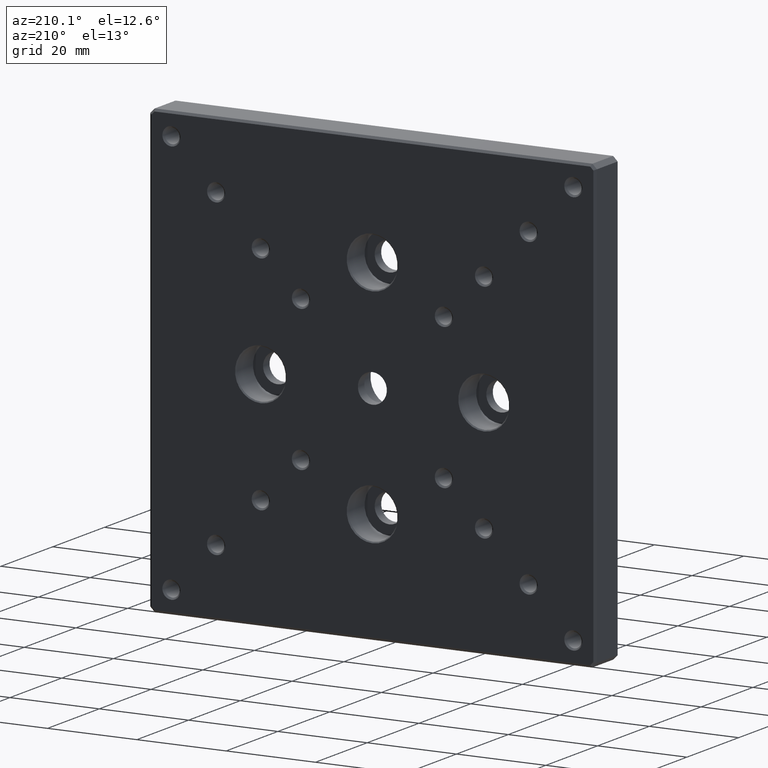
[diagram: clean part render]
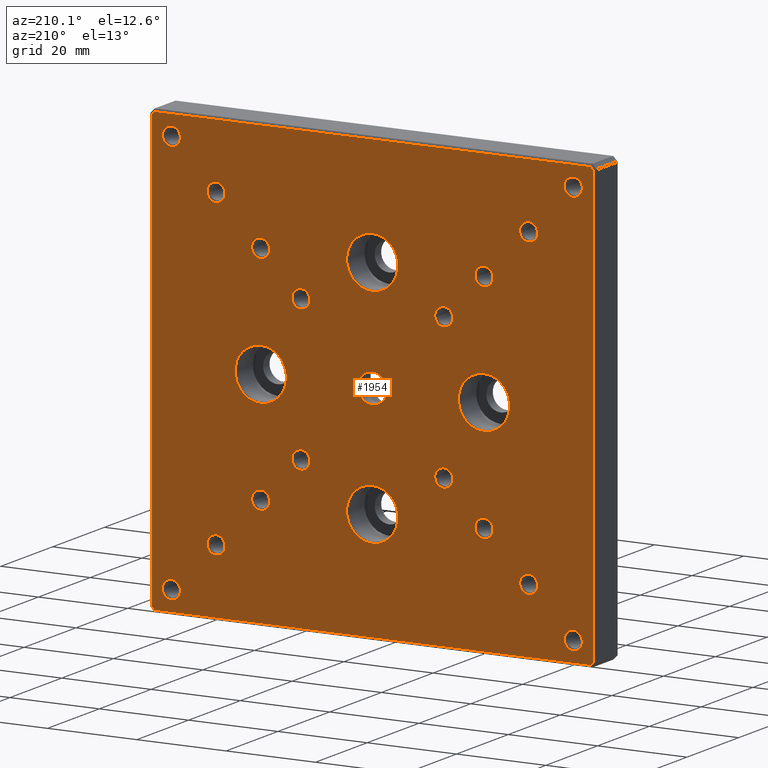
[diagram: same view with one face highlighted and labeled with its STEP entity id]
A machine part, auxiliary view. The second image highlights one B-rep face of the part: STEP entity #1954.
In plain terms, the highlighted planar face has unit normal (0, 1, 0).
Its self-contained STEP definition (entity closure, byte-faithful):
#1 = VERTEX_POINT ( 'NONE', #473 ) ;
#4 = AXIS2_PLACEMENT_3D ( 'NONE', #232, #1006, #1331 ) ;
#5 = ORIENTED_EDGE ( 'NONE', *, *, #1235, .T. ) ;
#16 = DIRECTION ( 'NONE',  ( 0.000000000000000000, 0.000000000000000000, 1.000000000000000000 ) ) ;
#25 = DIRECTION ( 'NONE',  ( 0.000000000000000000, 0.000000000000000000, 1.000000000000000000 ) ) ;
#26 = EDGE_LOOP ( 'NONE', ( #857 ) ) ;
#27 = DIRECTION ( 'NONE',  ( -0.000000000000000000, -1.000000000000000000, -0.000000000000000000 ) ) ;
#29 = EDGE_LOOP ( 'NONE', ( #1697 ) ) ;
#30 = AXIS2_PLACEMENT_3D ( 'NONE', #1728, #445, #1311 ) ;
#32 = CARTESIAN_POINT ( 'NONE',  ( -35.00000000000001421, 9.000000000000001776, -32.97500000000000853 ) ) ;
#35 = CIRCLE ( 'NONE', #919, 2.024999999999999023 ) ;
#38 = DIRECTION ( 'NONE',  ( -0.000000000000000000, 1.000000000000000000, -0.000000000000000000 ) ) ;
#39 = ORIENTED_EDGE ( 'NONE', *, *, #1466, .T. ) ;
#40 = VECTOR ( 'NONE', #1415, 1000.000000000000000 ) ;
#46 = EDGE_LOOP ( 'NONE', ( #1763 ) ) ;
#55 = CIRCLE ( 'NONE', #1634, 2.024999999999999023 ) ;
#69 = ORIENTED_EDGE ( 'NONE', *, *, #2072, .F. ) ;
#74 = DIRECTION ( 'NONE',  ( -1.387778780781445676E-16, 0.000000000000000000, -1.000000000000000000 ) ) ;
#84 = VERTEX_POINT ( 'NONE', #1437 ) ;
#88 = DIRECTION ( 'NONE',  ( 0.000000000000000000, -0.000000000000000000, 1.000000000000000000 ) ) ;
#95 = EDGE_CURVE ( 'NONE', #820, #820, #259, .T. ) ;
#96 = VERTEX_POINT ( 'NONE', #1233 ) ;
#98 = LINE ( 'NONE', #130, #40 ) ;
#104 = EDGE_LOOP ( 'NONE', ( #1701 ) ) ;
#105 = CIRCLE ( 'NONE', #1992, 5.750000000000032863 ) ;
#108 = FACE_BOUND ( 'NONE', #1667, .T. ) ;
#109 = ORIENTED_EDGE ( 'NONE', *, *, #1460, .F. ) ;
#118 = FACE_BOUND ( 'NONE', #1451, .T. ) ;
#130 = CARTESIAN_POINT ( 'NONE',  ( -49.14644660940640364, 9.000000000000000000, -49.14644660940707865 ) ) ;
#143 = AXIS2_PLACEMENT_3D ( 'NONE', #1735, #665, #623 ) ;
#167 = AXIS2_PLACEMENT_3D ( 'NONE', #1424, #903, #296 ) ;
#185 = VERTEX_POINT ( 'NONE', #1306 ) ;
#195 = DIRECTION ( 'NONE',  ( -1.000000000000000000, 0.000000000000000000, 0.000000000000000000 ) ) ;
#210 = CARTESIAN_POINT ( 'NONE',  ( 49.49999999999999289, 9.000000000000000000, -49.00000000000002132 ) ) ;
#223 = VERTEX_POINT ( 'NONE', #1801 ) ;
#228 = LINE ( 'NONE', #870, #927 ) ;
#230 = ORIENTED_EDGE ( 'NONE', *, *, #1110, .T. ) ;
#232 = CARTESIAN_POINT ( 'NONE',  ( 24.99999999999999289, 9.000000000000001776, -25.00000000000000000 ) ) ;
#242 = CARTESIAN_POINT ( 'NONE',  ( 15.99999999999999645, 9.000000000000001776, -13.97500000000000497 ) ) ;
#254 = FACE_BOUND ( 'NONE', #2015, .T. ) ;
#255 = VECTOR ( 'NONE', #1647, 1000.000000000000000 ) ;
#256 = ORIENTED_EDGE ( 'NONE', *, *, #1112, .T. ) ;
#258 = CARTESIAN_POINT ( 'NONE',  ( -45.00000000000001421, 9.000000000000001776, 45.00000000000000000 ) ) ;
#259 = CIRCLE ( 'NONE', #1800, 2.024999999999999023 ) ;
#262 = VERTEX_POINT ( 'NONE', #439 ) ;
#263 = LINE ( 'NONE', #1070, #1546 ) ;
#267 = ORIENTED_EDGE ( 'NONE', *, *, #486, .F. ) ;
#274 = VERTEX_POINT ( 'NONE', #570 ) ;
#284 = CIRCLE ( 'NONE', #1966, 2.024999999999999023 ) ;
#290 = CARTESIAN_POINT ( 'NONE',  ( 49.14644660940604126, 9.000000000000000000, 49.14644660940741261 ) ) ;
#296 = DIRECTION ( 'NONE',  ( 0.000000000000000000, 0.000000000000000000, 1.000000000000000000 ) ) ;
#302 = CIRCLE ( 'NONE', #1478, 5.750000000000074607 ) ;
#312 = CIRCLE ( 'NONE', #342, 3.250000000000011546 ) ;
#313 = EDGE_CURVE ( 'NONE', #1444, #1444, #1939, .T. ) ;
#314 = EDGE_LOOP ( 'NONE', ( #1747 ) ) ;
#315 = CARTESIAN_POINT ( 'NONE',  ( 25.00000000000000000, 9.000000000000001776, 24.99999999999999645 ) ) ;
#319 = DIRECTION ( 'NONE',  ( -0.000000000000000000, -1.000000000000000000, -0.000000000000000000 ) ) ;
#321 = CARTESIAN_POINT ( 'NONE',  ( 0.000000000000000000, 9.000000000000000000, 24.99999999999999645 ) ) ;
#339 = VECTOR ( 'NONE', #793, 1000.000000000000000 ) ;
#342 = AXIS2_PLACEMENT_3D ( 'NONE', #483, #319, #1454 ) ;
#357 = VERTEX_POINT ( 'NONE', #896 ) ;
#364 = EDGE_CURVE ( 'NONE', #2078, #2078, #1502, .T. ) ;
#402 = CARTESIAN_POINT ( 'NONE',  ( -48.79289321881344677, 9.000000000000000000, 49.50000000000000711 ) ) ;
#412 = DIRECTION ( 'NONE',  ( -0.000000000000000000, 1.000000000000000000, -0.000000000000000000 ) ) ;
#421 = AXIS2_PLACEMENT_3D ( 'NONE', #1590, #1282, #25 ) ;
#439 = CARTESIAN_POINT ( 'NONE',  ( 16.00000000000000000, 9.000000000000001776, 18.02499999999999503 ) ) ;
#445 = DIRECTION ( 'NONE',  ( -0.000000000000000000, 1.000000000000000000, -0.000000000000000000 ) ) ;
#469 = DIRECTION ( 'NONE',  ( 0.000000000000000000, 0.000000000000000000, 1.000000000000000000 ) ) ;
#473 = CARTESIAN_POINT ( 'NONE',  ( -45.00000000000002132, 9.000000000000001776, -42.97500000000000142 ) ) ;
#477 = EDGE_LOOP ( 'NONE', ( #764 ) ) ;
#483 = CARTESIAN_POINT ( 'NONE',  ( 0.000000000000000000, 8.999999999999994671, 0.000000000000000000 ) ) ;
#486 = EDGE_CURVE ( 'NONE', #1, #1, #933, .T. ) ;
#491 = CARTESIAN_POINT ( 'NONE',  ( 49.14644660940638232, 9.000000000000000000, -49.14644660940706444 ) ) ;
#514 = LINE ( 'NONE', #491, #339 ) ;
#526 = VERTEX_POINT ( 'NONE', #402 ) ;
#532 = DIRECTION ( 'NONE',  ( -0.000000000000000000, 1.000000000000000000, -0.000000000000000000 ) ) ;
#537 = VERTEX_POINT ( 'NONE', #559 ) ;
#543 = LINE ( 'NONE', #846, #255 ) ;
#551 = DIRECTION ( 'NONE',  ( -0.000000000000000000, 1.000000000000000000, -0.000000000000000000 ) ) ;
#559 = CARTESIAN_POINT ( 'NONE',  ( 49.50000000000000711, 9.000000000000000000, 48.79289321881345387 ) ) ;
#570 = CARTESIAN_POINT ( 'NONE',  ( -25.00000000000000000, 9.000000000000001776, 27.02499999999999858 ) ) ;
#574 = ORIENTED_EDGE ( 'NONE', *, *, #1416, .T. ) ;
#575 = CARTESIAN_POINT ( 'NONE',  ( 35.00000000000000711, 9.000000000000001776, 34.99999999999999289 ) ) ;
#577 = DIRECTION ( 'NONE',  ( -0.000000000000000000, -1.000000000000000000, -0.000000000000000000 ) ) ;
#595 = PLANE ( 'NONE',  #1153 ) ;
#596 = CIRCLE ( 'NONE', #421, 2.024999999999999023 ) ;
#599 = DIRECTION ( 'NONE',  ( -0.000000000000000000, 1.000000000000000000, -0.000000000000000000 ) ) ;
#616 = FACE_BOUND ( 'NONE', #1512, .T. ) ;
#623 = DIRECTION ( 'NONE',  ( 0.000000000000000000, 0.000000000000000000, 1.000000000000000000 ) ) ;
#631 = CARTESIAN_POINT ( 'NONE',  ( 24.99999999999999645, 9.000000000000000000, 5.750000000000032863 ) ) ;
#650 = CIRCLE ( 'NONE', #1864, 2.024999999999999023 ) ;
#659 = ORIENTED_EDGE ( 'NONE', *, *, #677, .T. ) ;
#665 = DIRECTION ( 'NONE',  ( -0.000000000000000000, 1.000000000000000000, -0.000000000000000000 ) ) ;
#668 = EDGE_CURVE ( 'NONE', #1519, #1519, #770, .T. ) ;
#677 = EDGE_CURVE ( 'NONE', #84, #526, #263, .T. ) ;
#688 = CARTESIAN_POINT ( 'NONE',  ( 45.00000000000000000, 9.000000000000001776, 45.00000000000000000 ) ) ;
#699 = DIRECTION ( 'NONE',  ( -0.000000000000000000, 1.000000000000000000, -0.000000000000000000 ) ) ;
#701 = ORIENTED_EDGE ( 'NONE', *, *, #1029, .T. ) ;
#710 = DIRECTION ( 'NONE',  ( 0.000000000000000000, 0.000000000000000000, 1.000000000000000000 ) ) ;
#728 = AXIS2_PLACEMENT_3D ( 'NONE', #2001, #699, #710 ) ;
#729 = CARTESIAN_POINT ( 'NONE',  ( 34.99999999999999289, 9.000000000000001776, -32.97500000000001563 ) ) ;
#735 = DIRECTION ( 'NONE',  ( 0.000000000000000000, 0.000000000000000000, 1.000000000000000000 ) ) ;
#742 = DIRECTION ( 'NONE',  ( -0.000000000000000000, 1.000000000000000000, -0.000000000000000000 ) ) ;
#749 = FACE_BOUND ( 'NONE', #1285, .T. ) ;
#762 = CARTESIAN_POINT ( 'NONE',  ( -35.00000000000000711, 9.000000000000001776, 34.99999999999999289 ) ) ;
#764 = ORIENTED_EDGE ( 'NONE', *, *, #1681, .T. ) ;
#770 = CIRCLE ( 'NONE', #1644, 2.024999999999999023 ) ;
#791 = EDGE_CURVE ( 'NONE', #877, #877, #1077, .T. ) ;
#792 = ORIENTED_EDGE ( 'NONE', *, *, #1774, .F. ) ;
#793 = DIRECTION ( 'NONE',  ( -0.7071067811865524577, 0.000000000000000000, -0.7071067811865426878 ) ) ;
#806 = DIRECTION ( 'NONE',  ( -0.000000000000000000, 1.000000000000000000, -0.000000000000000000 ) ) ;
#820 = VERTEX_POINT ( 'NONE', #1467 ) ;
#825 = EDGE_LOOP ( 'NONE', ( #109 ) ) ;
#830 = DIRECTION ( 'NONE',  ( -0.000000000000000000, -1.000000000000000000, -0.000000000000000000 ) ) ;
#838 = EDGE_CURVE ( 'NONE', #1007, #1007, #302, .T. ) ;
#844 = VERTEX_POINT ( 'NONE', #32 ) ;
#846 = CARTESIAN_POINT ( 'NONE',  ( 48.99999999999997868, 9.000000000000000000, 49.50000000000000711 ) ) ;
#857 = ORIENTED_EDGE ( 'NONE', *, *, #838, .T. ) ;
#866 = CARTESIAN_POINT ( 'NONE',  ( 24.99999999999999289, 9.000000000000001776, -22.97500000000000142 ) ) ;
#870 = CARTESIAN_POINT ( 'NONE',  ( -49.49999999999999289, 9.000000000000000000, 49.00000000000002132 ) ) ;
#877 = VERTEX_POINT ( 'NONE', #1499 ) ;
#891 = FACE_BOUND ( 'NONE', #1485, .T. ) ;
#896 = CARTESIAN_POINT ( 'NONE',  ( 48.79289321881343966, 9.000000000000000000, 49.50000000000000711 ) ) ;
#902 = VERTEX_POINT ( 'NONE', #2048 ) ;
#903 = DIRECTION ( 'NONE',  ( -0.000000000000000000, 1.000000000000000000, -0.000000000000000000 ) ) ;
#916 = DIRECTION ( 'NONE',  ( 0.000000000000000000, 1.000000000000000000, 0.000000000000000000 ) ) ;
#919 = AXIS2_PLACEMENT_3D ( 'NONE', #315, #806, #984 ) ;
#923 = CARTESIAN_POINT ( 'NONE',  ( 0.000000000000000000, 9.000000000000000000, 0.000000000000000000 ) ) ;
#927 = VECTOR ( 'NONE', #1707, 1000.000000000000000 ) ;
#933 = CIRCLE ( 'NONE', #30, 2.024999999999999023 ) ;
#934 = CARTESIAN_POINT ( 'NONE',  ( -48.79289321881346808, 9.000000000000000000, -49.49999999999999289 ) ) ;
#944 = DIRECTION ( 'NONE',  ( 0.7071067811865524577, 0.000000000000000000, 0.7071067811865426878 ) ) ;
#970 = CIRCLE ( 'NONE', #1102, 5.749999999999994671 ) ;
#971 = DIRECTION ( 'NONE',  ( -0.000000000000000000, -1.000000000000000000, -0.000000000000000000 ) ) ;
#975 = VERTEX_POINT ( 'NONE', #1507 ) ;
#984 = DIRECTION ( 'NONE',  ( 0.000000000000000000, 0.000000000000000000, 1.000000000000000000 ) ) ;
#993 = CARTESIAN_POINT ( 'NONE',  ( -49.00000000000002132, 9.000000000000000000, -49.49999999999999289 ) ) ;
#997 = VERTEX_POINT ( 'NONE', #866 ) ;
#1006 = DIRECTION ( 'NONE',  ( -0.000000000000000000, 1.000000000000000000, -0.000000000000000000 ) ) ;
#1007 = VERTEX_POINT ( 'NONE', #1790 ) ;
#1029 = EDGE_CURVE ( 'NONE', #537, #185, #1653, .T. ) ;
#1034 = ORIENTED_EDGE ( 'NONE', *, *, #1390, .F. ) ;
#1035 = CARTESIAN_POINT ( 'NONE',  ( 48.79289321881344677, 9.000000000000000000, -49.49999999999999289 ) ) ;
#1036 = DIRECTION ( 'NONE',  ( 0.000000000000000000, 0.000000000000000000, 1.000000000000000000 ) ) ;
#1039 = EDGE_CURVE ( 'NONE', #997, #997, #1715, .T. ) ;
#1055 = CARTESIAN_POINT ( 'NONE',  ( 24.99999999999999645, 9.000000000000000000, 0.000000000000000000 ) ) ;
#1056 = CIRCLE ( 'NONE', #143, 2.024999999999999023 ) ;
#1070 = CARTESIAN_POINT ( 'NONE',  ( -49.14644660940638232, 9.000000000000000000, 49.14644660940706444 ) ) ;
#1071 = FACE_BOUND ( 'NONE', #1783, .T. ) ;
#1077 = CIRCLE ( 'NONE', #167, 2.024999999999999023 ) ;
#1078 = EDGE_LOOP ( 'NONE', ( #69 ) ) ;
#1102 = AXIS2_PLACEMENT_3D ( 'NONE', #321, #971, #1598 ) ;
#1110 = EDGE_CURVE ( 'NONE', #1287, #1970, #1472, .T. ) ;
#1112 = EDGE_CURVE ( 'NONE', #1963, #1963, #105, .T. ) ;
#1118 = ORIENTED_EDGE ( 'NONE', *, *, #791, .F. ) ;
#1120 = EDGE_CURVE ( 'NONE', #223, #223, #35, .T. ) ;
#1127 = EDGE_CURVE ( 'NONE', #844, #844, #1252, .T. ) ;
#1134 = AXIS2_PLACEMENT_3D ( 'NONE', #258, #1369, #735 ) ;
#1153 = AXIS2_PLACEMENT_3D ( 'NONE', #923, #916, #88 ) ;
#1165 = CIRCLE ( 'NONE', #728, 2.024999999999999023 ) ;
#1176 = DIRECTION ( 'NONE',  ( 0.000000000000000000, 0.000000000000000000, 1.000000000000000000 ) ) ;
#1216 = FACE_BOUND ( 'NONE', #46, .T. ) ;
#1224 = FACE_BOUND ( 'NONE', #1775, .T. ) ;
#1231 = EDGE_LOOP ( 'NONE', ( #1118 ) ) ;
#1233 = CARTESIAN_POINT ( 'NONE',  ( -35.00000000000000711, 9.000000000000001776, 37.02499999999999858 ) ) ;
#1235 = EDGE_CURVE ( 'NONE', #185, #1287, #514, .T. ) ;
#1236 = FACE_BOUND ( 'NONE', #1957, .T. ) ;
#1244 = ORIENTED_EDGE ( 'NONE', *, *, #1417, .F. ) ;
#1245 = VERTEX_POINT ( 'NONE', #1569 ) ;
#1252 = CIRCLE ( 'NONE', #2026, 2.024999999999999023 ) ;
#1282 = DIRECTION ( 'NONE',  ( -0.000000000000000000, 1.000000000000000000, -0.000000000000000000 ) ) ;
#1285 = EDGE_LOOP ( 'NONE', ( #256 ) ) ;
#1287 = VERTEX_POINT ( 'NONE', #1035 ) ;
#1289 = CARTESIAN_POINT ( 'NONE',  ( -6.938893903907228378E-15, 9.000000000000000000, -25.00000000000000000 ) ) ;
#1306 = CARTESIAN_POINT ( 'NONE',  ( 49.49999999999999289, 9.000000000000000000, -48.79289321881345387 ) ) ;
#1311 = DIRECTION ( 'NONE',  ( 0.000000000000000000, 0.000000000000000000, 1.000000000000000000 ) ) ;
#1318 = EDGE_LOOP ( 'NONE', ( #230, #1420, #574, #659, #1481, #39, #701, #5 ) ) ;
#1323 = CARTESIAN_POINT ( 'NONE',  ( -16.00000000000000355, 9.000000000000001776, -16.00000000000000355 ) ) ;
#1331 = DIRECTION ( 'NONE',  ( 0.000000000000000000, 0.000000000000000000, 1.000000000000000000 ) ) ;
#1332 = VERTEX_POINT ( 'NONE', #729 ) ;
#1335 = AXIS2_PLACEMENT_3D ( 'NONE', #1055, #577, #1861 ) ;
#1364 = VERTEX_POINT ( 'NONE', #2006 ) ;
#1369 = DIRECTION ( 'NONE',  ( -0.000000000000000000, 1.000000000000000000, -0.000000000000000000 ) ) ;
#1370 = AXIS2_PLACEMENT_3D ( 'NONE', #575, #412, #1881 ) ;
#1385 = FACE_BOUND ( 'NONE', #1078, .T. ) ;
#1390 = EDGE_CURVE ( 'NONE', #1332, #1332, #650, .T. ) ;
#1393 = FACE_BOUND ( 'NONE', #26, .T. ) ;
#1405 = FACE_BOUND ( 'NONE', #1231, .T. ) ;
#1415 = DIRECTION ( 'NONE',  ( -0.7071067811865524577, 0.000000000000000000, 0.7071067811865426878 ) ) ;
#1416 = EDGE_CURVE ( 'NONE', #975, #84, #228, .T. ) ;
#1417 = EDGE_CURVE ( 'NONE', #96, #96, #284, .T. ) ;
#1420 = ORIENTED_EDGE ( 'NONE', *, *, #1946, .T. ) ;
#1424 = CARTESIAN_POINT ( 'NONE',  ( -25.00000000000000711, 9.000000000000001776, -25.00000000000000355 ) ) ;
#1437 = CARTESIAN_POINT ( 'NONE',  ( -49.49999999999999289, 9.000000000000000000, 48.79289321881346808 ) ) ;
#1444 = VERTEX_POINT ( 'NONE', #1580 ) ;
#1450 = CARTESIAN_POINT ( 'NONE',  ( -35.00000000000001421, 9.000000000000001776, -35.00000000000000711 ) ) ;
#1451 = EDGE_LOOP ( 'NONE', ( #1842 ) ) ;
#1454 = DIRECTION ( 'NONE',  ( 0.000000000000000000, 0.000000000000000000, -1.000000000000000000 ) ) ;
#1460 = EDGE_CURVE ( 'NONE', #262, #262, #2037, .T. ) ;
#1465 = DIRECTION ( 'NONE',  ( 0.000000000000000000, 0.000000000000000000, 1.000000000000000000 ) ) ;
#1466 = EDGE_CURVE ( 'NONE', #357, #537, #1890, .T. ) ;
#1467 = CARTESIAN_POINT ( 'NONE',  ( 44.99999999999997868, 9.000000000000001776, -42.97500000000000142 ) ) ;
#1472 = LINE ( 'NONE', #993, #1518 ) ;
#1476 = CARTESIAN_POINT ( 'NONE',  ( -25.00000000000000355, 9.000000000000000000, 5.750000000000029310 ) ) ;
#1478 = AXIS2_PLACEMENT_3D ( 'NONE', #1289, #830, #1465 ) ;
#1481 = ORIENTED_EDGE ( 'NONE', *, *, #1826, .T. ) ;
#1482 = CARTESIAN_POINT ( 'NONE',  ( -25.00000000000000355, 9.000000000000000000, -3.469446951953614189E-15 ) ) ;
#1485 = EDGE_LOOP ( 'NONE', ( #1535 ) ) ;
#1499 = CARTESIAN_POINT ( 'NONE',  ( -25.00000000000000711, 9.000000000000001776, -22.97500000000000497 ) ) ;
#1502 = CIRCLE ( 'NONE', #1335, 5.750000000000032863 ) ;
#1507 = CARTESIAN_POINT ( 'NONE',  ( -49.50000000000000711, 9.000000000000000000, -48.79289321881346808 ) ) ;
#1512 = EDGE_LOOP ( 'NONE', ( #2027 ) ) ;
#1515 = EDGE_CURVE ( 'NONE', #1558, #1558, #1534, .T. ) ;
#1518 = VECTOR ( 'NONE', #195, 1000.000000000000000 ) ;
#1519 = VERTEX_POINT ( 'NONE', #1654 ) ;
#1527 = AXIS2_PLACEMENT_3D ( 'NONE', #1574, #742, #2044 ) ;
#1528 = CARTESIAN_POINT ( 'NONE',  ( -16.00000000000000000, 9.000000000000001776, 18.02499999999999503 ) ) ;
#1530 = FACE_BOUND ( 'NONE', #29, .T. ) ;
#1534 = CIRCLE ( 'NONE', #1370, 2.024999999999999023 ) ;
#1535 = ORIENTED_EDGE ( 'NONE', *, *, #1127, .F. ) ;
#1546 = VECTOR ( 'NONE', #944, 1000.000000000000000 ) ;
#1558 = VERTEX_POINT ( 'NONE', #1876 ) ;
#1569 = CARTESIAN_POINT ( 'NONE',  ( 0.000000000000000000, 8.999999999999994671, -3.250000000000011546 ) ) ;
#1574 = CARTESIAN_POINT ( 'NONE',  ( 16.00000000000000000, 9.000000000000001776, 15.99999999999999645 ) ) ;
#1580 = CARTESIAN_POINT ( 'NONE',  ( -45.00000000000001421, 9.000000000000001776, 47.02499999999999858 ) ) ;
#1590 = CARTESIAN_POINT ( 'NONE',  ( -16.00000000000000000, 9.000000000000001776, 15.99999999999999645 ) ) ;
#1598 = DIRECTION ( 'NONE',  ( 0.000000000000000000, 0.000000000000000000, 1.000000000000000000 ) ) ;
#1610 = EDGE_CURVE ( 'NONE', #2016, #2016, #596, .T. ) ;
#1625 = DIRECTION ( 'NONE',  ( -0.000000000000000000, 1.000000000000000000, -0.000000000000000000 ) ) ;
#1634 = AXIS2_PLACEMENT_3D ( 'NONE', #1323, #532, #1176 ) ;
#1644 = AXIS2_PLACEMENT_3D ( 'NONE', #688, #551, #1834 ) ;
#1647 = DIRECTION ( 'NONE',  ( 1.000000000000000000, 0.000000000000000000, 0.000000000000000000 ) ) ;
#1649 = CARTESIAN_POINT ( 'NONE',  ( 34.99999999999999289, 9.000000000000001776, -35.00000000000001421 ) ) ;
#1653 = LINE ( 'NONE', #210, #1746 ) ;
#1654 = CARTESIAN_POINT ( 'NONE',  ( 45.00000000000000000, 9.000000000000001776, 47.02499999999999858 ) ) ;
#1661 = EDGE_LOOP ( 'NONE', ( #1893 ) ) ;
#1667 = EDGE_LOOP ( 'NONE', ( #1244 ) ) ;
#1668 = DIRECTION ( 'NONE',  ( -0.000000000000000000, 1.000000000000000000, -0.000000000000000000 ) ) ;
#1680 = EDGE_LOOP ( 'NONE', ( #1712 ) ) ;
#1681 = EDGE_CURVE ( 'NONE', #902, #902, #970, .T. ) ;
#1684 = FACE_OUTER_BOUND ( 'NONE', #1318, .T. ) ;
#1690 = VECTOR ( 'NONE', #1901, 999.9999999999998863 ) ;
#1697 = ORIENTED_EDGE ( 'NONE', *, *, #1039, .F. ) ;
#1701 = ORIENTED_EDGE ( 'NONE', *, *, #95, .F. ) ;
#1707 = DIRECTION ( 'NONE',  ( 1.387778780781445676E-16, 0.000000000000000000, 1.000000000000000000 ) ) ;
#1712 = ORIENTED_EDGE ( 'NONE', *, *, #364, .T. ) ;
#1715 = CIRCLE ( 'NONE', #4, 2.024999999999999023 ) ;
#1716 = FACE_BOUND ( 'NONE', #825, .T. ) ;
#1724 = FACE_BOUND ( 'NONE', #1680, .T. ) ;
#1727 = DIRECTION ( 'NONE',  ( 0.000000000000000000, 0.000000000000000000, 1.000000000000000000 ) ) ;
#1728 = CARTESIAN_POINT ( 'NONE',  ( -45.00000000000002132, 9.000000000000001776, -45.00000000000000000 ) ) ;
#1735 = CARTESIAN_POINT ( 'NONE',  ( 15.99999999999999645, 9.000000000000001776, -16.00000000000000355 ) ) ;
#1742 = EDGE_LOOP ( 'NONE', ( #1034 ) ) ;
#1746 = VECTOR ( 'NONE', #74, 1000.000000000000000 ) ;
#1747 = ORIENTED_EDGE ( 'NONE', *, *, #1787, .F. ) ;
#1763 = ORIENTED_EDGE ( 'NONE', *, *, #2014, .T. ) ;
#1774 = EDGE_CURVE ( 'NONE', #1364, #1364, #55, .T. ) ;
#1775 = EDGE_LOOP ( 'NONE', ( #1855 ) ) ;
#1783 = EDGE_LOOP ( 'NONE', ( #267 ) ) ;
#1787 = EDGE_CURVE ( 'NONE', #274, #274, #1165, .T. ) ;
#1790 = CARTESIAN_POINT ( 'NONE',  ( -6.938893903907228378E-15, 9.000000000000000000, -19.24999999999992539 ) ) ;
#1800 = AXIS2_PLACEMENT_3D ( 'NONE', #1829, #38, #1036 ) ;
#1801 = CARTESIAN_POINT ( 'NONE',  ( 25.00000000000000000, 9.000000000000001776, 27.02499999999999858 ) ) ;
#1826 = EDGE_CURVE ( 'NONE', #526, #357, #543, .T. ) ;
#1829 = CARTESIAN_POINT ( 'NONE',  ( 44.99999999999997868, 9.000000000000001776, -45.00000000000000000 ) ) ;
#1834 = DIRECTION ( 'NONE',  ( 0.000000000000000000, 0.000000000000000000, 1.000000000000000000 ) ) ;
#1842 = ORIENTED_EDGE ( 'NONE', *, *, #1120, .F. ) ;
#1855 = ORIENTED_EDGE ( 'NONE', *, *, #668, .F. ) ;
#1861 = DIRECTION ( 'NONE',  ( 0.000000000000000000, 0.000000000000000000, 1.000000000000000000 ) ) ;
#1864 = AXIS2_PLACEMENT_3D ( 'NONE', #1649, #1668, #2003 ) ;
#1876 = CARTESIAN_POINT ( 'NONE',  ( 35.00000000000000711, 9.000000000000001776, 37.02499999999999858 ) ) ;
#1881 = DIRECTION ( 'NONE',  ( 0.000000000000000000, 0.000000000000000000, 1.000000000000000000 ) ) ;
#1890 = LINE ( 'NONE', #290, #1690 ) ;
#1893 = ORIENTED_EDGE ( 'NONE', *, *, #1515, .F. ) ;
#1898 = FACE_BOUND ( 'NONE', #314, .T. ) ;
#1901 = DIRECTION ( 'NONE',  ( 0.7071067811865574537, 0.000000000000000000, -0.7071067811865376918 ) ) ;
#1939 = CIRCLE ( 'NONE', #1134, 2.024999999999999023 ) ;
#1946 = EDGE_CURVE ( 'NONE', #1970, #975, #98, .T. ) ;
#1954 = ADVANCED_FACE ( 'NONE', ( #2018, #1724, #1393, #749, #1216, #1071, #891, #1405, #254, #1385, #1530, #2041, #2050, #1224, #2058, #118, #1716, #616, #1898, #108, #1236, #1684 ), #595, .T. ) ;
#1957 = EDGE_LOOP ( 'NONE', ( #2054 ) ) ;
#1963 = VERTEX_POINT ( 'NONE', #1476 ) ;
#1966 = AXIS2_PLACEMENT_3D ( 'NONE', #762, #599, #1727 ) ;
#1970 = VERTEX_POINT ( 'NONE', #934 ) ;
#1992 = AXIS2_PLACEMENT_3D ( 'NONE', #1482, #27, #469 ) ;
#2001 = CARTESIAN_POINT ( 'NONE',  ( -25.00000000000000000, 9.000000000000001776, 24.99999999999999645 ) ) ;
#2003 = DIRECTION ( 'NONE',  ( 0.000000000000000000, 0.000000000000000000, 1.000000000000000000 ) ) ;
#2006 = CARTESIAN_POINT ( 'NONE',  ( -16.00000000000000355, 9.000000000000001776, -13.97500000000000497 ) ) ;
#2014 = EDGE_CURVE ( 'NONE', #1245, #1245, #312, .T. ) ;
#2015 = EDGE_LOOP ( 'NONE', ( #792 ) ) ;
#2016 = VERTEX_POINT ( 'NONE', #1528 ) ;
#2018 = FACE_BOUND ( 'NONE', #477, .T. ) ;
#2026 = AXIS2_PLACEMENT_3D ( 'NONE', #1450, #1625, #16 ) ;
#2027 = ORIENTED_EDGE ( 'NONE', *, *, #1610, .F. ) ;
#2028 = VERTEX_POINT ( 'NONE', #242 ) ;
#2037 = CIRCLE ( 'NONE', #1527, 2.024999999999999023 ) ;
#2041 = FACE_BOUND ( 'NONE', #1742, .T. ) ;
#2044 = DIRECTION ( 'NONE',  ( 0.000000000000000000, 0.000000000000000000, 1.000000000000000000 ) ) ;
#2048 = CARTESIAN_POINT ( 'NONE',  ( 0.000000000000000000, 9.000000000000000000, 30.74999999999999289 ) ) ;
#2050 = FACE_BOUND ( 'NONE', #104, .T. ) ;
#2054 = ORIENTED_EDGE ( 'NONE', *, *, #313, .F. ) ;
#2058 = FACE_BOUND ( 'NONE', #1661, .T. ) ;
#2072 = EDGE_CURVE ( 'NONE', #2028, #2028, #1056, .T. ) ;
#2078 = VERTEX_POINT ( 'NONE', #631 ) ;